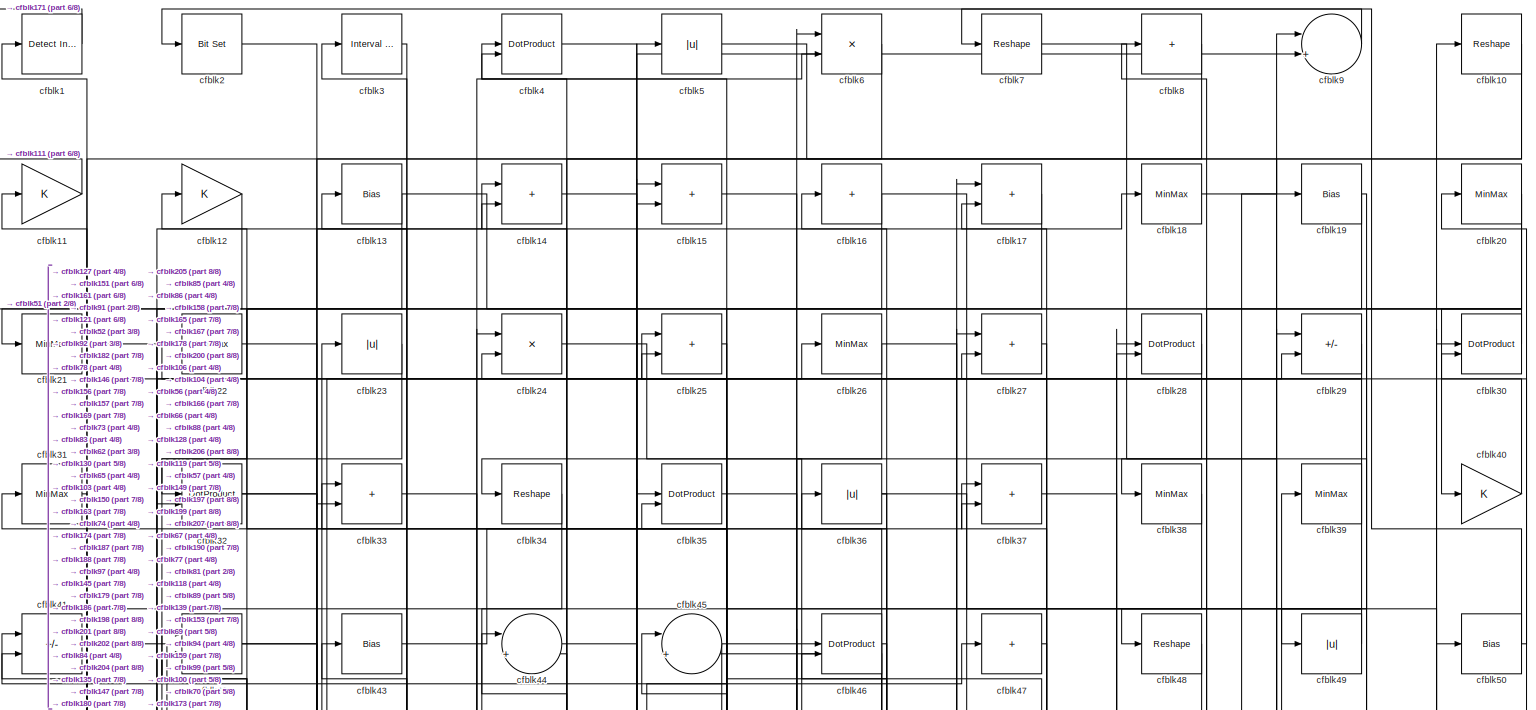
[diagram: root canvas - part 1/8, full width, top band]
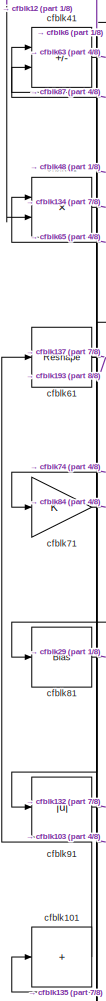
[diagram: root canvas - part 2/8, middle left region]
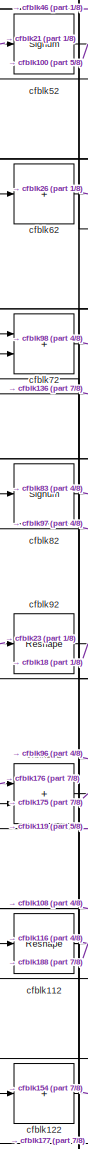
[diagram: root canvas - part 3/8, middle left region]
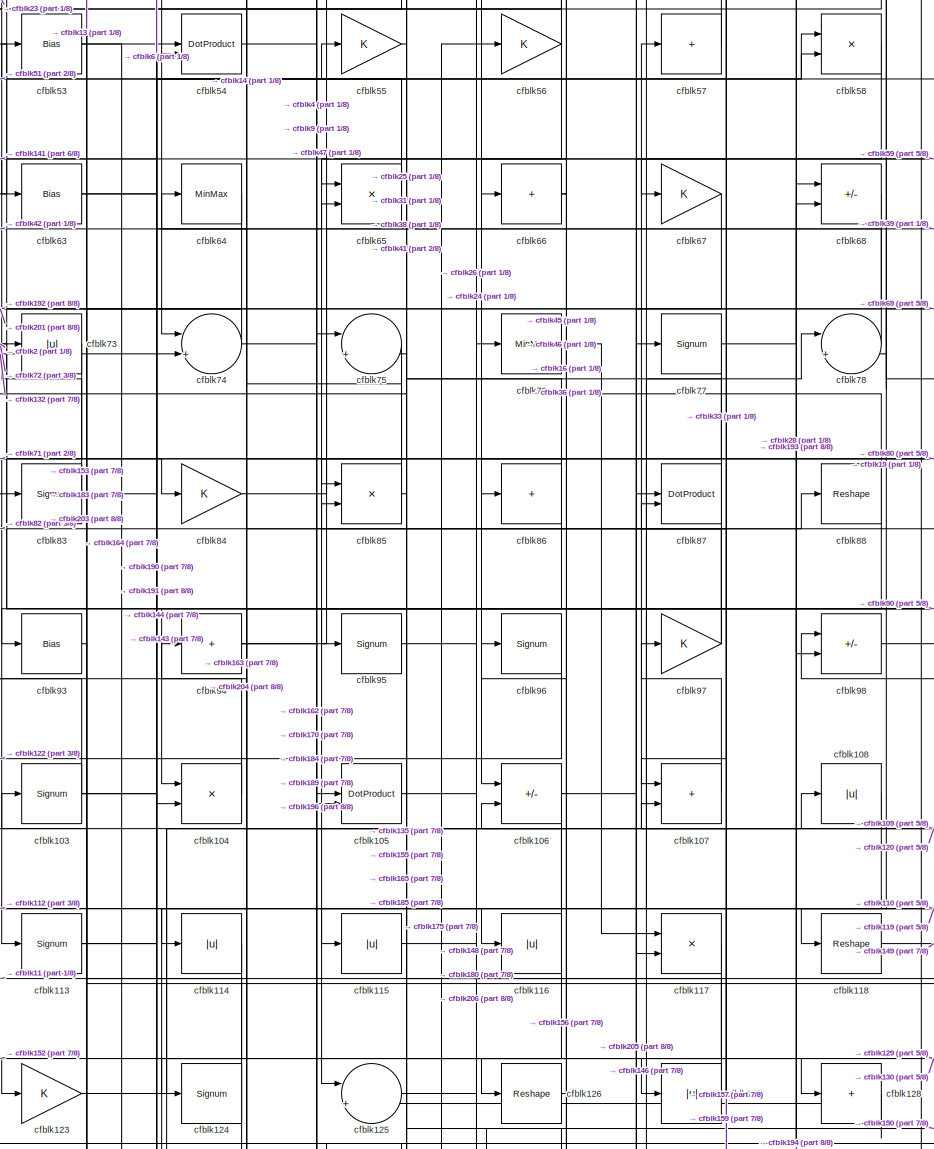
[diagram: root canvas - part 4/8, central region]
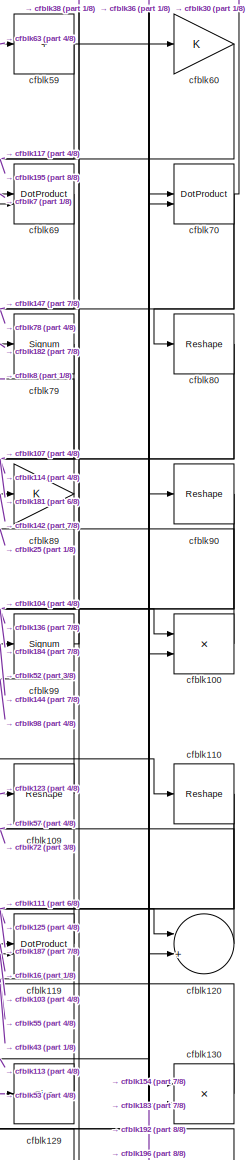
[diagram: root canvas - part 5/8, middle right region]
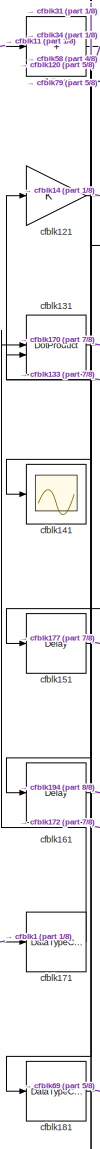
[diagram: root canvas - part 6/8, bottom left region]
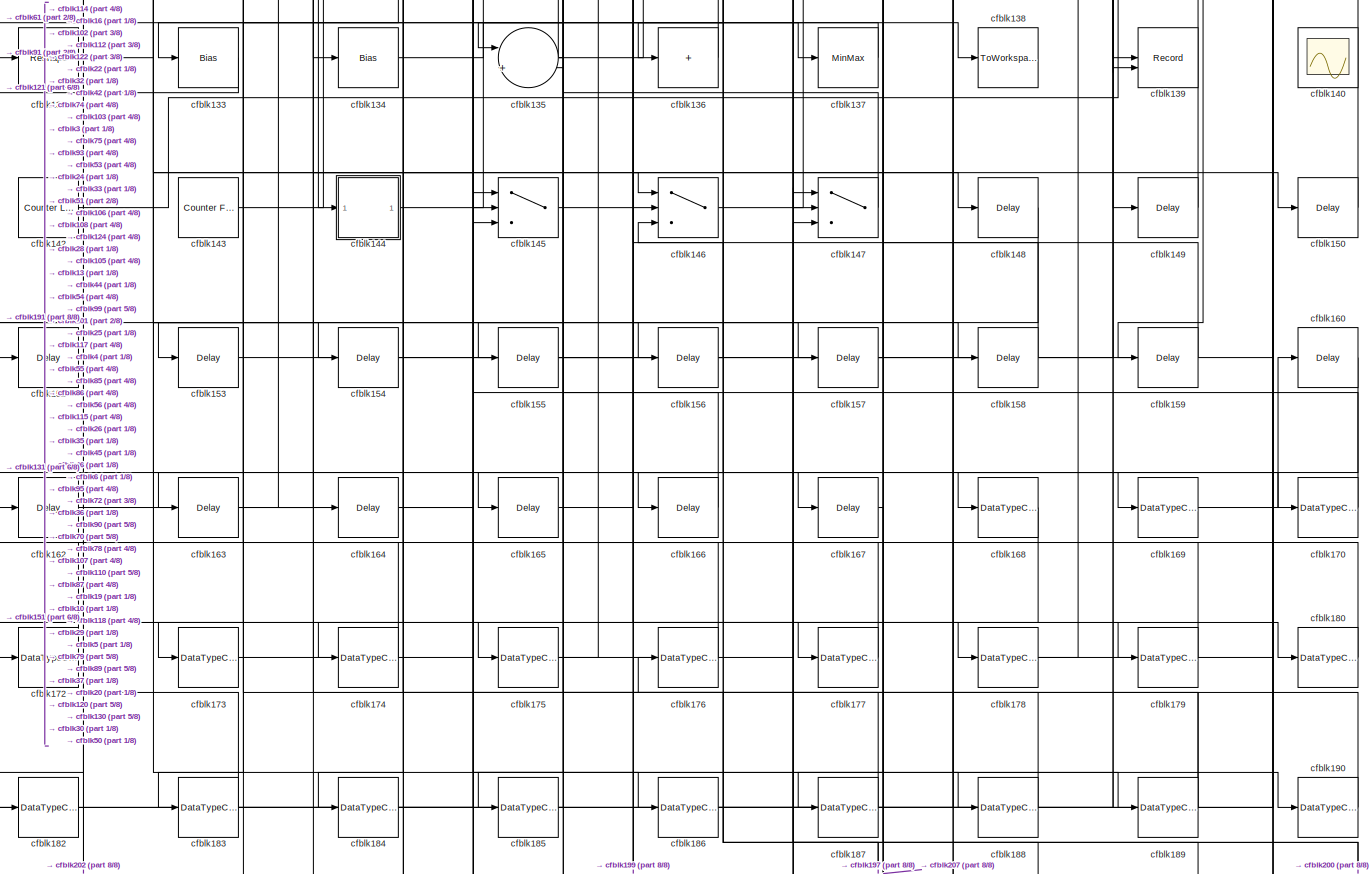
[diagram: root canvas - part 7/8, full width, bottom band]
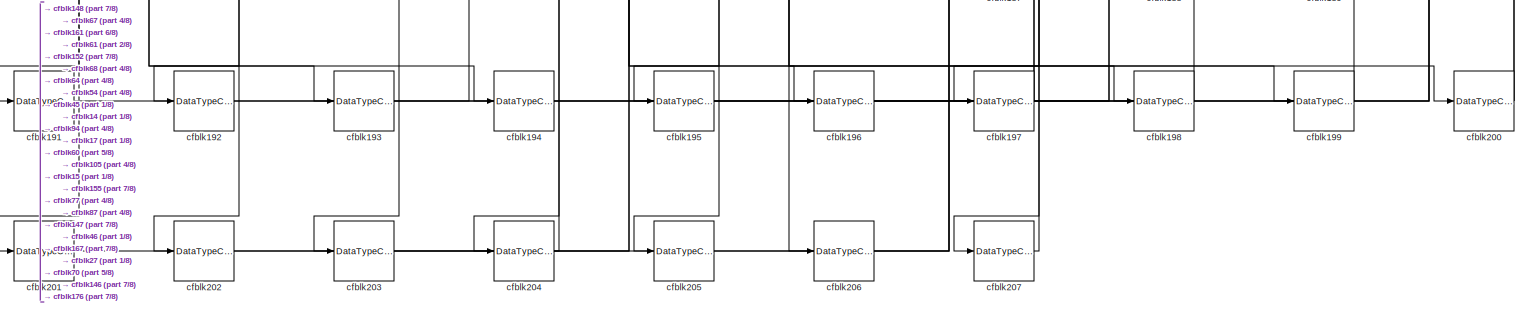
[diagram: root canvas - part 8/8, full width, bottom band]
MODEL slx_73ec1786da1a
KIND model
CONFIG AbsTol = auto
CONFIG EnableMultiTasking = off
CONFIG FixedStep = auto
CONFIG MaxStep = auto
CONFIG MinStep = auto
CONFIG RelTol = 1e-3
CONFIG SampleTimeConstraint = Unconstrained
CONFIG SolverName = VariableStepAuto
CONFIG StartTime = 0.0
CONFIG StopTime = 10.0
BLOCK [Reference] cfblk1  REF=simulink/Logic and Bit
Operations/Detect
Increase
  LibrarySourceBlock = hdlsllib/Logic and Bit\nOperations/Detect\nIncrease
  SourceBlock = simulink/Logic and Bit\nOperations/Detect\nIncrease
  SourceType = Detect Increase
BLOCK [Reshape] cfblk10
BLOCK [Product] cfblk100
  Inputs = */
  RndMeth = Zero
  SaturateOnIntegerOverflow = on
BLOCK [Sum] cfblk101
  IconShape = rectangular
  Inputs = +
BLOCK [Sum] cfblk102
  IconShape = rectangular
BLOCK [Signum] cfblk103
BLOCK [Product] cfblk104
  Inputs = */
  RndMeth = Zero
  SaturateOnIntegerOverflow = on
BLOCK [DotProduct] cfblk105
  OutDataTypeStr = Inherit: Inherit via internal rule
BLOCK [Sum] cfblk106
  IconShape = rectangular
  Inputs = +-
BLOCK [Sum] cfblk107
  IconShape = rectangular
BLOCK [Abs] cfblk108
  SaturateOnIntegerOverflow = off
BLOCK [Reshape] cfblk109
BLOCK [Gain] cfblk11
BLOCK [Reshape] cfblk110
BLOCK [Sum] cfblk111
  IconShape = rectangular
  Inputs = +
BLOCK [Reshape] cfblk112
BLOCK [Signum] cfblk113
BLOCK [Abs] cfblk114
  SaturateOnIntegerOverflow = off
BLOCK [Abs] cfblk115
  SaturateOnIntegerOverflow = off
BLOCK [Abs] cfblk116
  SaturateOnIntegerOverflow = off
BLOCK [Product] cfblk117
  Inputs = */
  RndMeth = Zero
  SaturateOnIntegerOverflow = on
BLOCK [Reshape] cfblk118
BLOCK [DotProduct] cfblk119
  OutDataTypeStr = Inherit: Inherit via internal rule
BLOCK [Gain] cfblk12
BLOCK [Sum] cfblk120
  Inputs = |++
BLOCK [Gain] cfblk121
BLOCK [Sum] cfblk122
  IconShape = rectangular
  Inputs = +
BLOCK [Gain] cfblk123
BLOCK [Signum] cfblk124
BLOCK [Sum] cfblk125
  Inputs = |++
BLOCK [Reshape] cfblk126
BLOCK [Abs] cfblk127
  SaturateOnIntegerOverflow = off
BLOCK [Sum] cfblk128
  IconShape = rectangular
  Inputs = +
BLOCK [Bias] cfblk129
  Bias = 0.0
  SaturateOnIntegerOverflow = off
BLOCK [Bias] cfblk13
  Bias = 0.0
  SaturateOnIntegerOverflow = off
BLOCK [Product] cfblk130
  Inputs = */
  RndMeth = Zero
  SaturateOnIntegerOverflow = on
BLOCK [DotProduct] cfblk131
  OutDataTypeStr = Inherit: Inherit via internal rule
BLOCK [Reshape] cfblk132
BLOCK [Bias] cfblk133
  Bias = 0.0
  SaturateOnIntegerOverflow = off
BLOCK [Bias] cfblk134
  Bias = 0.0
  SaturateOnIntegerOverflow = off
BLOCK [Sum] cfblk135
  Inputs = |++
BLOCK [Sum] cfblk136
  IconShape = rectangular
  Inputs = +
BLOCK [MinMax] cfblk137
BLOCK [ToWorkspace] cfblk138
  MaxDataPoints = inf
  SampleTime = -1
  SaveFormat = Timeseries
  VariableName = simout
BLOCK [Record] cfblk139
  CompatibilityTag = XY
  FileSettingsInternal = {"entries":[{"content":{"excelSettings":{"content":{},"type":"Streamout.ExcelSettings"}},"type":"Streamout.FileSettingStorage","uuid":""}],"packageUris":["http:\/\/schema.mathworks.com\/mf0\/streamout_blocks\/R2020a"],"version":"1.0"}
  Layout = [1 1]
  SignalsInternal = {"entries":[{"content":{"signals":[{"content":{"blockPath":[],"dimensions":[1],"domain":"","lineColor":"#a2142f","plots":[1],"port":1,"signalID":5150,"signalName":"XY Graph:1"},"type":"RecordBlkView.Signal","uuid":""},{"content":{"blockPath":[],"dimensions":[1],"domain":"","lineColor":"#139fff","plots":[1],"port":2,"signalID":5153,"signalName":"XY Graph:2"},"type":"RecordBlkView.Signal","uuid":""}...<+146ch>
  VisualizationBindings = {"xyplotplugin":{"info":[{"series":[{"bindingParametersList":[{"parameter":"X-Axis","signalID":5150,"signalName":"XY Graph:1"},{"parameter":"Y-Axis","signalID":5153,"signalName":"XY Graph:2"}],"seriesID":52586}],"subplotID":1}]}}
  st = -1
BLOCK [Sum] cfblk14
  IconShape = rectangular
BLOCK [Scope] cfblk140
  Floating = on
  NumInputPorts = 1
  ScopeSpecificationString = Simulink.scopes.TimeScopeBlockCfg('CurrentConfiguration', extmgr.ConfigurationSet(extmgr.Configuration('Core','General UI',true,'FigureColor',[0.156862745098039 0.156862745098039 0.156862745098039]),extmgr.Configuration('Core','Source UI',true),extmgr.Configuration('Sources','WiredSimulink',true,'DataLoggingVariableName','ScopeData1','DataLoggingSaveFormat','StructureWithTime','DataLoggingLimitDat...<+2713ch>
BLOCK [Scope] cfblk141
  Floating = off
  NumInputPorts = 1
  ScopeSpecificationString = Simulink.scopes.TimeScopeBlockCfg('CurrentConfiguration', extmgr.ConfigurationSet(extmgr.Configuration('Core','General UI',true),extmgr.Configuration('Core','Source UI',true),extmgr.Configuration('Sources','WiredSimulink',true,'DataLoggingVariableName','ScopeData2','DataLoggingSaveFormat','Array','DataLoggingLimitDataPoints',true,'DataLoggingDecimation','1'),extmgr.Configuration('Visuals','Time Do...<+868ch>
BLOCK [Reference] cfblk142  REF=hdlsllib/Sources/Counter
Limited
  SourceBlock = hdlsllib/Sources/Counter\nLimited
  SourceType = Counter Limited
BLOCK [Reference] cfblk143  REF=hdlsllib/Sources/Counter
Free-Running
  SourceBlock = hdlsllib/Sources/Counter\nFree-Running
  SourceType = Counter Free-Running
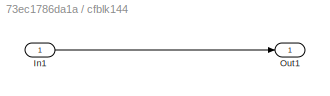
BLOCK [SubSystem] cfblk144
  LibrarySourceBlock = hdlsllib/Ports &\nSubsystems/Subsystem
BLOCK [Inport] cfblk144/In1
BLOCK [Outport] cfblk144/Out1
BLOCK [Switch] cfblk145
  InputSameDT = off
  SaturateOnIntegerOverflow = off
BLOCK [Switch] cfblk146
  InputSameDT = off
  SaturateOnIntegerOverflow = off
BLOCK [Switch] cfblk147
  InputSameDT = off
  SaturateOnIntegerOverflow = off
BLOCK [Delay] cfblk148
  InputPortMap = u0
  SampleTime = 1
BLOCK [Delay] cfblk149
  InputPortMap = u0
  SampleTime = 1
BLOCK [Sum] cfblk15
  IconShape = rectangular
BLOCK [Delay] cfblk150
  InputPortMap = u0
  SampleTime = 1
BLOCK [Delay] cfblk151
  InputPortMap = u0
  SampleTime = 1
BLOCK [Delay] cfblk152
  InputPortMap = u0
  SampleTime = 1
BLOCK [Delay] cfblk153
  InputPortMap = u0
  SampleTime = 1
BLOCK [Delay] cfblk154
  InputPortMap = u0
  SampleTime = 1
BLOCK [Delay] cfblk155
  InputPortMap = u0
  SampleTime = 1
BLOCK [Delay] cfblk156
  InputPortMap = u0
  SampleTime = 1
BLOCK [Delay] cfblk157
  InputPortMap = u0
  SampleTime = 1
BLOCK [Delay] cfblk158
  InputPortMap = u0
  SampleTime = 1
BLOCK [Delay] cfblk159
  InputPortMap = u0
  SampleTime = 1
BLOCK [Sum] cfblk16
  IconShape = rectangular
  Inputs = +
BLOCK [Delay] cfblk160
  InputPortMap = u0
  SampleTime = 1
BLOCK [Delay] cfblk161
  InputPortMap = u0
  SampleTime = 1
BLOCK [Delay] cfblk162
  InputPortMap = u0
  SampleTime = 1
BLOCK [Delay] cfblk163
  InputPortMap = u0
  SampleTime = 1
BLOCK [Delay] cfblk164
  InputPortMap = u0
  SampleTime = 1
BLOCK [Delay] cfblk165
  InputPortMap = u0
  SampleTime = 1
BLOCK [Delay] cfblk166
  InputPortMap = u0
  SampleTime = 1
BLOCK [Delay] cfblk167
  InputPortMap = u0
  SampleTime = 1
BLOCK [DataTypeConversion] cfblk168
  OutDataTypeStr = uint8
  RndMeth = Floor
  SaturateOnIntegerOverflow = off
BLOCK [DataTypeConversion] cfblk169
  OutDataTypeStr = uint8
  RndMeth = Floor
  SaturateOnIntegerOverflow = off
BLOCK [Sum] cfblk17
  IconShape = rectangular
BLOCK [DataTypeConversion] cfblk170
  OutDataTypeStr = uint8
  RndMeth = Floor
  SaturateOnIntegerOverflow = off
BLOCK [DataTypeConversion] cfblk171
  OutDataTypeStr = uint8
  RndMeth = Floor
  SaturateOnIntegerOverflow = off
BLOCK [DataTypeConversion] cfblk172
  OutDataTypeStr = uint8
  RndMeth = Floor
  SaturateOnIntegerOverflow = off
BLOCK [DataTypeConversion] cfblk173
  OutDataTypeStr = uint8
  RndMeth = Floor
  SaturateOnIntegerOverflow = off
BLOCK [DataTypeConversion] cfblk174
  OutDataTypeStr = uint8
  RndMeth = Floor
  SaturateOnIntegerOverflow = off
BLOCK [DataTypeConversion] cfblk175
  RndMeth = Floor
  SaturateOnIntegerOverflow = off
BLOCK [DataTypeConversion] cfblk176
  OutDataTypeStr = uint8
  RndMeth = Floor
  SaturateOnIntegerOverflow = off
BLOCK [DataTypeConversion] cfblk177
  OutDataTypeStr = uint8
  RndMeth = Floor
  SaturateOnIntegerOverflow = off
BLOCK [DataTypeConversion] cfblk178
  RndMeth = Floor
  SaturateOnIntegerOverflow = off
BLOCK [DataTypeConversion] cfblk179
  OutDataTypeStr = uint8
  RndMeth = Floor
  SaturateOnIntegerOverflow = off
BLOCK [MinMax] cfblk18
BLOCK [DataTypeConversion] cfblk180
  OutDataTypeStr = uint8
  RndMeth = Floor
  SaturateOnIntegerOverflow = off
BLOCK [DataTypeConversion] cfblk181
  OutDataTypeStr = uint8
  RndMeth = Floor
  SaturateOnIntegerOverflow = off
BLOCK [DataTypeConversion] cfblk182
  OutDataTypeStr = uint8
  RndMeth = Floor
  SaturateOnIntegerOverflow = off
BLOCK [DataTypeConversion] cfblk183
  RndMeth = Floor
  SaturateOnIntegerOverflow = off
BLOCK [DataTypeConversion] cfblk184
  OutDataTypeStr = uint8
  RndMeth = Floor
  SaturateOnIntegerOverflow = off
BLOCK [DataTypeConversion] cfblk185
  OutDataTypeStr = uint8
  RndMeth = Floor
  SaturateOnIntegerOverflow = off
BLOCK [DataTypeConversion] cfblk186
  RndMeth = Floor
  SaturateOnIntegerOverflow = off
BLOCK [DataTypeConversion] cfblk187
  OutDataTypeStr = uint8
  RndMeth = Floor
  SaturateOnIntegerOverflow = off
BLOCK [DataTypeConversion] cfblk188
  OutDataTypeStr = uint8
  RndMeth = Floor
  SaturateOnIntegerOverflow = off
BLOCK [DataTypeConversion] cfblk189
  RndMeth = Floor
  SaturateOnIntegerOverflow = off
BLOCK [Bias] cfblk19
  Bias = 0.0
  SaturateOnIntegerOverflow = off
BLOCK [DataTypeConversion] cfblk190
  OutDataTypeStr = uint8
  RndMeth = Floor
  SaturateOnIntegerOverflow = off
BLOCK [DataTypeConversion] cfblk191
  OutDataTypeStr = uint8
  RndMeth = Floor
  SaturateOnIntegerOverflow = off
BLOCK [DataTypeConversion] cfblk192
  OutDataTypeStr = uint8
  RndMeth = Floor
  SaturateOnIntegerOverflow = off
BLOCK [DataTypeConversion] cfblk193
  OutDataTypeStr = uint8
  RndMeth = Floor
  SaturateOnIntegerOverflow = off
BLOCK [DataTypeConversion] cfblk194
  OutDataTypeStr = uint8
  RndMeth = Floor
  SaturateOnIntegerOverflow = off
BLOCK [DataTypeConversion] cfblk195
  OutDataTypeStr = uint8
  RndMeth = Floor
  SaturateOnIntegerOverflow = off
BLOCK [DataTypeConversion] cfblk196
  OutDataTypeStr = uint8
  RndMeth = Floor
  SaturateOnIntegerOverflow = off
BLOCK [DataTypeConversion] cfblk197
  RndMeth = Floor
  SaturateOnIntegerOverflow = off
BLOCK [DataTypeConversion] cfblk198
  OutDataTypeStr = uint8
  RndMeth = Floor
  SaturateOnIntegerOverflow = off
BLOCK [DataTypeConversion] cfblk199
  OutDataTypeStr = uint8
  RndMeth = Floor
  SaturateOnIntegerOverflow = off
BLOCK [Reference] cfblk2  REF=simulink/Logic and Bit
Operations/Bit Set
  LibrarySourceBlock = hdlsllib/Logic and Bit\nOperations/Bit Set
  SourceBlock = simulink/Logic and Bit\nOperations/Bit Set
  SourceType = Bit Set
BLOCK [MinMax] cfblk20
BLOCK [DataTypeConversion] cfblk200
  RndMeth = Floor
  SaturateOnIntegerOverflow = off
BLOCK [DataTypeConversion] cfblk201
  OutDataTypeStr = uint8
  RndMeth = Floor
  SaturateOnIntegerOverflow = off
BLOCK [DataTypeConversion] cfblk202
  OutDataTypeStr = uint8
  RndMeth = Floor
  SaturateOnIntegerOverflow = off
BLOCK [DataTypeConversion] cfblk203
  OutDataTypeStr = uint8
  RndMeth = Floor
  SaturateOnIntegerOverflow = off
BLOCK [DataTypeConversion] cfblk204
  OutDataTypeStr = uint8
  RndMeth = Floor
  SaturateOnIntegerOverflow = off
BLOCK [DataTypeConversion] cfblk205
  OutDataTypeStr = uint8
  RndMeth = Floor
  SaturateOnIntegerOverflow = off
BLOCK [DataTypeConversion] cfblk206
  OutDataTypeStr = uint8
  RndMeth = Floor
  SaturateOnIntegerOverflow = off
BLOCK [DataTypeConversion] cfblk207
  OutDataTypeStr = uint8
  RndMeth = Floor
  SaturateOnIntegerOverflow = off
BLOCK [MinMax] cfblk21
BLOCK [MinMax] cfblk22
BLOCK [Abs] cfblk23
  SaturateOnIntegerOverflow = off
BLOCK [Product] cfblk24
  Inputs = */
  RndMeth = Zero
  SaturateOnIntegerOverflow = on
BLOCK [Sum] cfblk25
  IconShape = rectangular
BLOCK [MinMax] cfblk26
BLOCK [Sum] cfblk27
  IconShape = rectangular
BLOCK [DotProduct] cfblk28
  OutDataTypeStr = Inherit: Inherit via internal rule
BLOCK [Sum] cfblk29
  IconShape = rectangular
  Inputs = +-
BLOCK [Reference] cfblk3  REF=hdlsllib/Logic and Bit
Operations/Interval Test
  SourceBlock = hdlsllib/Logic and Bit\nOperations/Interval Test
  SourceType = Interval Test
BLOCK [DotProduct] cfblk30
  OutDataTypeStr = Inherit: Inherit via internal rule
BLOCK [MinMax] cfblk31
BLOCK [DotProduct] cfblk32
  OutDataTypeStr = Inherit: Inherit via internal rule
BLOCK [Sum] cfblk33
  IconShape = rectangular
BLOCK [Reshape] cfblk34
BLOCK [DotProduct] cfblk35
  OutDataTypeStr = Inherit: Inherit via internal rule
BLOCK [Abs] cfblk36
  SaturateOnIntegerOverflow = off
BLOCK [Sum] cfblk37
  IconShape = rectangular
BLOCK [MinMax] cfblk38
BLOCK [MinMax] cfblk39
BLOCK [DotProduct] cfblk4
  OutDataTypeStr = Inherit: Inherit via internal rule
BLOCK [Gain] cfblk40
BLOCK [Sum] cfblk41
  IconShape = rectangular
  Inputs = +-
BLOCK [Sum] cfblk42
  IconShape = rectangular
BLOCK [Bias] cfblk43
  Bias = 0.0
  SaturateOnIntegerOverflow = off
BLOCK [Sum] cfblk44
  Inputs = |++
BLOCK [Sum] cfblk45
  Inputs = |++
BLOCK [DotProduct] cfblk46
  OutDataTypeStr = Inherit: Inherit via internal rule
BLOCK [Sum] cfblk47
  IconShape = rectangular
  Inputs = +
BLOCK [Reshape] cfblk48
BLOCK [Abs] cfblk49
  SaturateOnIntegerOverflow = off
BLOCK [Abs] cfblk5
  SaturateOnIntegerOverflow = off
BLOCK [Bias] cfblk50
  Bias = 0.0
  SaturateOnIntegerOverflow = off
BLOCK [Product] cfblk51
  Inputs = */
  RndMeth = Zero
  SaturateOnIntegerOverflow = on
BLOCK [Signum] cfblk52
BLOCK [Bias] cfblk53
  Bias = 0.0
  SaturateOnIntegerOverflow = off
BLOCK [DotProduct] cfblk54
  OutDataTypeStr = Inherit: Inherit via internal rule
BLOCK [Gain] cfblk55
BLOCK [Gain] cfblk56
BLOCK [Sum] cfblk57
  IconShape = rectangular
  Inputs = +
BLOCK [Product] cfblk58
  Inputs = */
  RndMeth = Zero
  SaturateOnIntegerOverflow = on
BLOCK [Sum] cfblk59
  IconShape = rectangular
  Inputs = +
BLOCK [Product] cfblk6
  Inputs = */
  RndMeth = Zero
  SaturateOnIntegerOverflow = on
BLOCK [Gain] cfblk60
BLOCK [Reshape] cfblk61
BLOCK [Sum] cfblk62
  IconShape = rectangular
  Inputs = +
BLOCK [Bias] cfblk63
  Bias = 0.0
  SaturateOnIntegerOverflow = off
BLOCK [MinMax] cfblk64
BLOCK [Product] cfblk65
  Inputs = */
  RndMeth = Zero
  SaturateOnIntegerOverflow = on
BLOCK [Sum] cfblk66
  IconShape = rectangular
  Inputs = +
BLOCK [Gain] cfblk67
BLOCK [Sum] cfblk68
  IconShape = rectangular
  Inputs = +-
BLOCK [DotProduct] cfblk69
  OutDataTypeStr = Inherit: Inherit via internal rule
BLOCK [Reshape] cfblk7
BLOCK [DotProduct] cfblk70
  OutDataTypeStr = Inherit: Inherit via internal rule
BLOCK [Gain] cfblk71
BLOCK [Sum] cfblk72
  IconShape = rectangular
BLOCK [Abs] cfblk73
  SaturateOnIntegerOverflow = off
BLOCK [Sum] cfblk74
  Inputs = |++
BLOCK [Sum] cfblk75
  Inputs = |++
BLOCK [MinMax] cfblk76
BLOCK [Signum] cfblk77
BLOCK [Sum] cfblk78
  Inputs = |++
BLOCK [Signum] cfblk79
BLOCK [Sum] cfblk8
  IconShape = rectangular
  Inputs = +
BLOCK [Reshape] cfblk80
BLOCK [Bias] cfblk81
  Bias = 0.0
  SaturateOnIntegerOverflow = off
BLOCK [Signum] cfblk82
BLOCK [Signum] cfblk83
BLOCK [Gain] cfblk84
BLOCK [Product] cfblk85
  Inputs = */
  RndMeth = Zero
  SaturateOnIntegerOverflow = on
BLOCK [Sum] cfblk86
  IconShape = rectangular
  Inputs = +
BLOCK [DotProduct] cfblk87
  OutDataTypeStr = Inherit: Inherit via internal rule
BLOCK [Reshape] cfblk88
BLOCK [Gain] cfblk89
BLOCK [Sum] cfblk9
  Inputs = |++
BLOCK [Reshape] cfblk90
BLOCK [Abs] cfblk91
  SaturateOnIntegerOverflow = off
BLOCK [Reshape] cfblk92
BLOCK [Bias] cfblk93
  Bias = 0.0
  SaturateOnIntegerOverflow = off
BLOCK [Sum] cfblk94
  IconShape = rectangular
  Inputs = +
BLOCK [Signum] cfblk95
BLOCK [Signum] cfblk96
BLOCK [Gain] cfblk97
BLOCK [Sum] cfblk98
  IconShape = rectangular
  Inputs = +-
BLOCK [Signum] cfblk99
LINE cfblk100:1 -> cfblk25:1
LINE cfblk101:1 -> cfblk61:1
LINE cfblk102:1 -> cfblk175:1
NET cfblk103:1 -> cfblk119:2, cfblk41:2, cfblk6:2
LINE cfblk104:1 -> cfblk42:2
LINE cfblk105:1 -> cfblk206:1
NET cfblk106:1 -> cfblk144:1, cfblk88:1
LINE cfblk107:1 -> cfblk97:1
LINE cfblk108:1 -> cfblk112:1
LINE cfblk109:1 -> cfblk98:1
NET cfblk10:1 -> cfblk139:2, cfblk34:1
NET cfblk110:1 -> cfblk125:1, cfblk187:1
LINE cfblk111:1 -> cfblk120:1
NET cfblk112:1 -> cfblk116:1, cfblk188:1
NET cfblk113:1 -> cfblk130:2, cfblk58:1
LINE cfblk114:1 -> cfblk152:1
LINE cfblk115:1 -> cfblk148:1
NET cfblk116:1 -> cfblk123:1, cfblk94:1
LINE cfblk117:1 -> cfblk155:1
LINE cfblk118:1 -> cfblk149:1
LINE cfblk119:1 -> cfblk72:1
LINE cfblk11:1 -> cfblk111:1
LINE cfblk120:1 -> cfblk57:1
LINE cfblk121:1 -> cfblk14:1
LINE cfblk122:1 -> cfblk154:1
LINE cfblk123:1 -> cfblk109:1
NET cfblk124:1 -> cfblk163:1, cfblk53:1
LINE cfblk125:1 -> cfblk76:1
LINE cfblk126:1 -> cfblk96:1
LINE cfblk127:1 -> cfblk11:1
LINE cfblk128:1 -> cfblk125:2
LINE cfblk129:1 -> cfblk55:1
LINE cfblk12:1 -> cfblk51:2
LINE cfblk130:1 -> cfblk43:1
LINE cfblk131:1 -> cfblk170:1
LINE cfblk132:1 -> cfblk74:2
LINE cfblk133:1 -> cfblk121:1
LINE cfblk134:1 -> cfblk138:1
NET cfblk135:1 -> cfblk101:1, cfblk10:1, cfblk25:2
LINE cfblk136:1 -> cfblk72:2
LINE cfblk137:1 -> cfblk133:1
NET cfblk13:1 -> cfblk145:1, cfblk32:2
LINE cfblk142:1 -> cfblk89:1
LINE cfblk143:1 -> cfblk108:1
LINE cfblk144/In1:1 -> cfblk144/Out1:1
LINE cfblk144:1 -> cfblk99:1
LINE cfblk145:1 -> cfblk158:1
LINE cfblk146:1 -> cfblk78:1
LINE cfblk147:1 -> cfblk4:2
LINE cfblk148:1 -> cfblk191:1
LINE cfblk149:1 -> cfblk37:2
LINE cfblk14:1 -> cfblk198:1
LINE cfblk150:1 -> cfblk85:2
LINE cfblk151:1 -> cfblk177:1
LINE cfblk152:1 -> cfblk202:1
LINE cfblk153:1 -> cfblk29:1
LINE cfblk154:1 -> cfblk130:1
LINE cfblk155:1 -> cfblk199:1
LINE cfblk156:1 -> cfblk106:2
LINE cfblk157:1 -> cfblk107:2
LINE cfblk158:1 -> cfblk46:1
LINE cfblk159:1 -> cfblk87:2
LINE cfblk15:1 -> cfblk200:1
LINE cfblk160:1 -> cfblk168:1
LINE cfblk161:1 -> cfblk194:1
LINE cfblk162:1 -> cfblk105:2
LINE cfblk163:1 -> cfblk24:1
LINE cfblk164:1 -> cfblk179:1
LINE cfblk165:1 -> cfblk6:1
LINE cfblk166:1 -> cfblk45:1
LINE cfblk167:1 -> cfblk207:1
LINE cfblk168:1 -> cfblk172:1
LINE cfblk169:1 -> cfblk160:1
NET cfblk16:1 -> cfblk119:1, cfblk182:1
LINE cfblk170:1 -> cfblk105:1
LINE cfblk171:1 -> cfblk131:1
LINE cfblk172:1 -> cfblk131:2
LINE cfblk173:1 -> cfblk5:1
LINE cfblk174:1 -> cfblk3:1
NET cfblk175:1 -> cfblk147:3, cfblk56:1
LINE cfblk176:1 -> cfblk102:1
LINE cfblk177:1 -> cfblk102:2
NET cfblk178:1 -> cfblk19:1, cfblk30:1
LINE cfblk179:1 -> cfblk35:1
LINE cfblk17:1 -> cfblk205:1
LINE cfblk180:1 -> cfblk35:2
LINE cfblk181:1 -> cfblk69:2
LINE cfblk182:1 -> cfblk79:1
NET cfblk183:1 -> cfblk120:2, cfblk145:3, cfblk162:1
LINE cfblk184:1 -> cfblk75:1
LINE cfblk185:1 -> cfblk75:2
NET cfblk186:1 -> cfblk28:2, cfblk50:1
LINE cfblk187:1 -> cfblk44:1
LINE cfblk188:1 -> cfblk44:2
NET cfblk189:1 -> cfblk103:1, cfblk135:2
LINE cfblk18:1 -> cfblk9:1
LINE cfblk190:1 -> cfblk54:1
LINE cfblk191:1 -> cfblk54:2
LINE cfblk192:1 -> cfblk70:1
LINE cfblk193:1 -> cfblk68:1
LINE cfblk194:1 -> cfblk68:2
LINE cfblk195:1 -> cfblk70:2
LINE cfblk196:1 -> cfblk60:1
NET cfblk197:1 -> cfblk147:1, cfblk46:2
LINE cfblk198:1 -> cfblk27:1
LINE cfblk199:1 -> cfblk27:2
NET cfblk19:1 -> cfblk118:1, cfblk49:1
LINE cfblk1:1 -> cfblk171:1
NET cfblk200:1 -> cfblk146:3, cfblk176:1
LINE cfblk201:1 -> cfblk15:1
LINE cfblk202:1 -> cfblk15:2
LINE cfblk203:1 -> cfblk77:1
LINE cfblk204:1 -> cfblk64:1
LINE cfblk205:1 -> cfblk87:1
LINE cfblk206:1 -> cfblk17:1
LINE cfblk207:1 -> cfblk17:2
NET cfblk20:1 -> cfblk159:1, cfblk32:1, cfblk40:1
LINE cfblk21:1 -> cfblk52:1
LINE cfblk22:1 -> cfblk145:2
LINE cfblk23:1 -> cfblk92:1
LINE cfblk24:1 -> cfblk106:1
LINE cfblk25:1 -> cfblk65:1
NET cfblk26:1 -> cfblk128:1, cfblk146:2
LINE cfblk27:1 -> cfblk197:1
LINE cfblk28:1 -> cfblk174:1
LINE cfblk29:1 -> cfblk24:2
LINE cfblk2:1 -> cfblk73:1
LINE cfblk30:1 -> cfblk21:1
LINE cfblk31:1 -> cfblk161:1
NET cfblk32:1 -> cfblk146:1, cfblk169:1
LINE cfblk33:1 -> cfblk150:1
LINE cfblk34:1 -> cfblk151:1
LINE cfblk35:1 -> cfblk178:1
NET cfblk36:1 -> cfblk100:2, cfblk166:1
LINE cfblk37:1 -> cfblk190:1
LINE cfblk38:1 -> cfblk85:1
NET cfblk39:1 -> cfblk1:1, cfblk74:1
LINE cfblk3:1 -> cfblk173:1
LINE cfblk40:1 -> cfblk22:1
LINE cfblk41:1 -> cfblk63:1
NET cfblk42:1 -> cfblk156:1, cfblk157:1
LINE cfblk43:1 -> cfblk37:1
LINE cfblk44:1 -> cfblk186:1
NET cfblk45:1 -> cfblk167:1, cfblk204:1
NET cfblk46:1 -> cfblk104:2, cfblk12:1, cfblk62:1, cfblk66:1
LINE cfblk47:1 -> cfblk67:1
LINE cfblk48:1 -> cfblk81:1
LINE cfblk49:1 -> cfblk48:1
LINE cfblk4:1 -> cfblk127:1
NET cfblk50:1 -> cfblk20:1, cfblk7:1
LINE cfblk51:1 -> cfblk134:1
LINE cfblk52:1 -> cfblk100:1
NET cfblk53:1 -> cfblk129:1, cfblk164:1
LINE cfblk54:1 -> cfblk189:1
LINE cfblk55:1 -> cfblk165:1
NET cfblk56:1 -> cfblk115:1, cfblk45:2
LINE cfblk57:1 -> cfblk33:1
LINE cfblk58:1 -> cfblk141:1
NET cfblk59:1 -> cfblk117:2, cfblk90:1
LINE cfblk5:1 -> cfblk139:1
LINE cfblk60:1 -> cfblk195:1
NET cfblk61:1 -> cfblk137:1, cfblk193:1
LINE cfblk62:1 -> cfblk26:1
NET cfblk63:1 -> cfblk59:1, cfblk65:2
LINE cfblk64:1 -> cfblk203:1
NET cfblk65:1 -> cfblk13:1, cfblk51:1
NET cfblk66:1 -> cfblk16:1, cfblk86:1
LINE cfblk67:1 -> cfblk201:1
LINE cfblk68:1 -> cfblk192:1
LINE cfblk69:1 -> cfblk78:2
LINE cfblk6:1 -> cfblk91:1
NET cfblk70:1 -> cfblk147:2, cfblk30:2, cfblk80:1
LINE cfblk71:1 -> cfblk84:1
LINE cfblk72:1 -> cfblk98:2
LINE cfblk73:1 -> cfblk93:1
NET cfblk74:1 -> cfblk71:1, cfblk9:2
LINE cfblk75:1 -> cfblk183:1
NET cfblk76:1 -> cfblk117:1, cfblk126:1
NET cfblk77:1 -> cfblk28:1, cfblk95:1
LINE cfblk78:1 -> cfblk42:1
LINE cfblk79:1 -> cfblk181:1
LINE cfblk7:1 -> cfblk69:1
NET cfblk80:1 -> cfblk107:1, cfblk114:1
LINE cfblk81:1 -> cfblk29:2
LINE cfblk82:1 -> cfblk83:1
NET cfblk83:1 -> cfblk23:1, cfblk58:2
LINE cfblk84:1 -> cfblk47:1
NET cfblk85:1 -> cfblk135:1, cfblk4:1
NET cfblk86:1 -> cfblk185:1, cfblk31:1
NET cfblk87:1 -> cfblk113:1, cfblk41:1
NET cfblk88:1 -> cfblk124:1, cfblk36:1
NET cfblk89:1 -> cfblk184:1, cfblk8:1
LINE cfblk8:1 -> cfblk33:2
NET cfblk90:1 -> cfblk104:1, cfblk136:1
LINE cfblk91:1 -> cfblk132:1
LINE cfblk92:1 -> cfblk18:1
LINE cfblk93:1 -> cfblk153:1
NET cfblk94:1 -> cfblk196:1, cfblk39:1
LINE cfblk95:1 -> cfblk180:1
LINE cfblk96:1 -> cfblk122:1
NET cfblk97:1 -> cfblk14:2, cfblk82:1
LINE cfblk98:1 -> cfblk110:1
LINE cfblk99:1 -> cfblk38:1
LINE cfblk9:1 -> cfblk2:1
note: NET lines group one-source signal fan-out (src -> all destinations, sorted); 1:1 wires keep LINE
